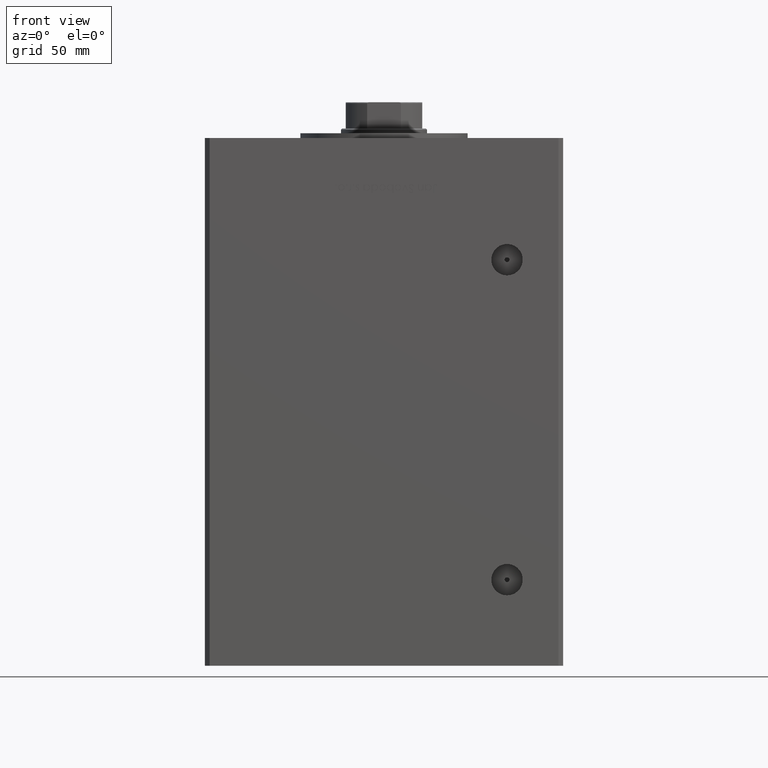
[diagram: clean part render]
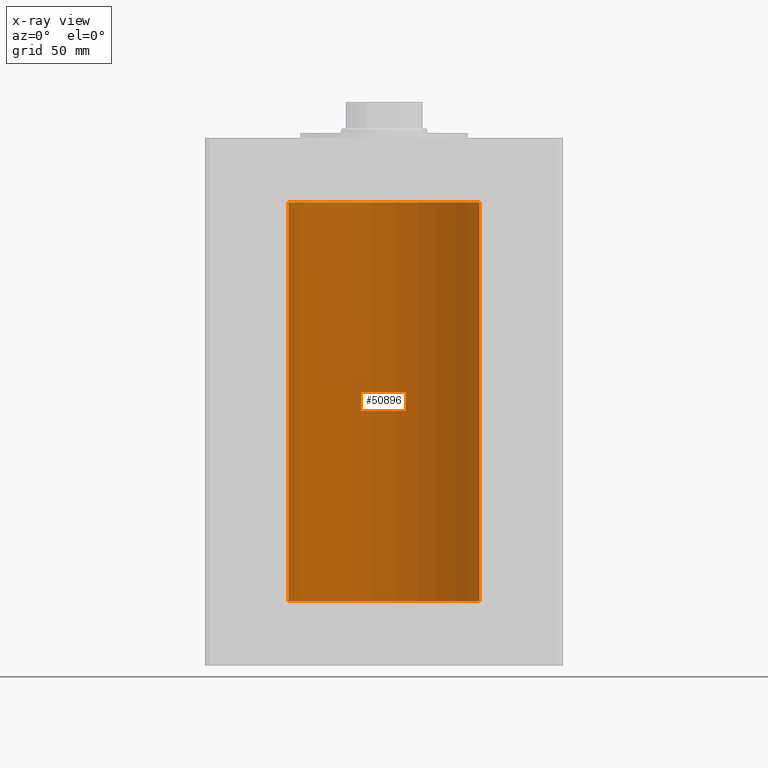
[diagram: x-ray — body ghosted, one internal face saturated and labeled with its STEP entity id]
A machine part, front view, then the same camera in x-ray: the body is ghosted and one INTERNAL B-rep face — a face not visible from any outside direction — is saturated and labeled: STEP entity #50896.
In plain terms, the highlighted cylindrical surface (partial cylindrical patch) has radius 40 mm, axis along (-0, -0, -1).
Its self-contained STEP definition (entity closure, byte-faithful):
#1644 = CARTESIAN_POINT ( 'NONE',  ( 0.000000000000000000, 0.000000000000000000, 167.0000000000000000 ) ) ;
#1877 = EDGE_CURVE ( 'NONE', #19946, #23593, #12769, .T. ) ;
#6579 = CARTESIAN_POINT ( 'NONE',  ( 0.000000000000000000, 0.000000000000000000, 167.0000000000000000 ) ) ;
#7721 = AXIS2_PLACEMENT_3D ( 'NONE', #1644, #42443, #30077 ) ;
#8227 = VERTEX_POINT ( 'NONE', #26280 ) ;
#8757 = CARTESIAN_POINT ( 'NONE',  ( 40.00000000000000000, 4.898587196589412237E-15, 167.0000000000000000 ) ) ;
#9751 = DIRECTION ( 'NONE',  ( -0.000000000000000000, -0.000000000000000000, -1.000000000000000000 ) ) ;
#11675 = CARTESIAN_POINT ( 'NONE',  ( 0.000000000000000000, 0.000000000000000000, 0.000000000000000000 ) ) ;
#12458 = DIRECTION ( 'NONE',  ( -0.000000000000000000, -0.000000000000000000, -1.000000000000000000 ) ) ;
#12580 = EDGE_LOOP ( 'NONE', ( #48625, #51888, #51425, #44160 ) ) ;
#12769 = CIRCLE ( 'NONE', #7721, 40.00000000000000000 ) ;
#18997 = AXIS2_PLACEMENT_3D ( 'NONE', #11675, #27750, #35898 ) ;
#19946 = VERTEX_POINT ( 'NONE', #8757 ) ;
#20806 = EDGE_CURVE ( 'NONE', #8227, #51905, #28249, .T. ) ;
#21888 = EDGE_CURVE ( 'NONE', #19946, #8227, #38317, .T. ) ;
#23593 = VERTEX_POINT ( 'NONE', #32522 ) ;
#24837 = CARTESIAN_POINT ( 'NONE',  ( -40.00000000000000000, 0.000000000000000000, 167.0000000000000000 ) ) ;
#26280 = CARTESIAN_POINT ( 'NONE',  ( 40.00000000000000000, 4.898587196589412237E-15, 0.000000000000000000 ) ) ;
#27750 = DIRECTION ( 'NONE',  ( -0.000000000000000000, 0.000000000000000000, 1.000000000000000000 ) ) ;
#27897 = CARTESIAN_POINT ( 'NONE',  ( -40.00000000000000000, 0.000000000000000000, 0.000000000000000000 ) ) ;
#28249 = CIRCLE ( 'NONE', #18997, 40.00000000000000000 ) ;
#30077 = DIRECTION ( 'NONE',  ( 1.000000000000000000, 0.000000000000000000, 0.000000000000000000 ) ) ;
#32522 = CARTESIAN_POINT ( 'NONE',  ( -40.00000000000000000, 0.000000000000000000, 167.0000000000000000 ) ) ;
#33341 = CARTESIAN_POINT ( 'NONE',  ( 40.00000000000000000, 4.898587196589412237E-15, 167.0000000000000000 ) ) ;
#33990 = DIRECTION ( 'NONE',  ( -1.000000000000000000, 0.000000000000000000, 0.000000000000000000 ) ) ;
#35898 = DIRECTION ( 'NONE',  ( 1.000000000000000000, 0.000000000000000000, 0.000000000000000000 ) ) ;
#36654 = VECTOR ( 'NONE', #46233, 1000.000000000000000 ) ;
#38317 = LINE ( 'NONE', #33341, #36654 ) ;
#40365 = LINE ( 'NONE', #24837, #43033 ) ;
#42443 = DIRECTION ( 'NONE',  ( -0.000000000000000000, 0.000000000000000000, 1.000000000000000000 ) ) ;
#43033 = VECTOR ( 'NONE', #12458, 1000.000000000000000 ) ;
#44160 = ORIENTED_EDGE ( 'NONE', *, *, #20806, .F. ) ;
#44277 = EDGE_CURVE ( 'NONE', #23593, #51905, #40365, .T. ) ;
#45842 = CYLINDRICAL_SURFACE ( 'NONE', #48321, 40.00000000000000000 ) ;
#46233 = DIRECTION ( 'NONE',  ( -0.000000000000000000, -0.000000000000000000, -1.000000000000000000 ) ) ;
#46631 = FACE_OUTER_BOUND ( 'NONE', #12580, .T. ) ;
#48321 = AXIS2_PLACEMENT_3D ( 'NONE', #6579, #9751, #33990 ) ;
#48625 = ORIENTED_EDGE ( 'NONE', *, *, #21888, .F. ) ;
#50896 = ADVANCED_FACE ( 'NONE', ( #46631 ), #45842, .F. ) ;
#51425 = ORIENTED_EDGE ( 'NONE', *, *, #44277, .T. ) ;
#51888 = ORIENTED_EDGE ( 'NONE', *, *, #1877, .T. ) ;
#51905 = VERTEX_POINT ( 'NONE', #27897 ) ;